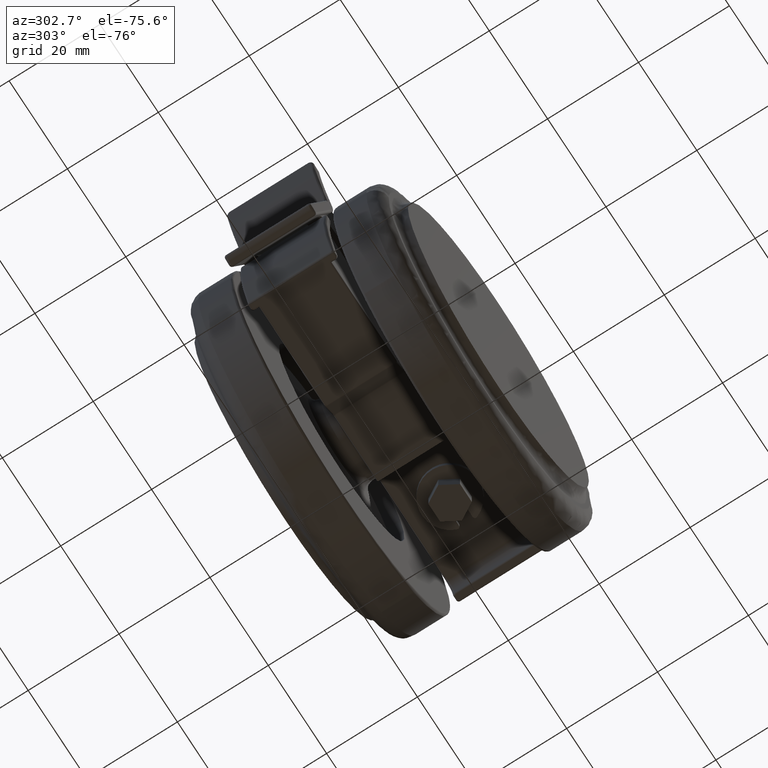
[diagram: clean part render]
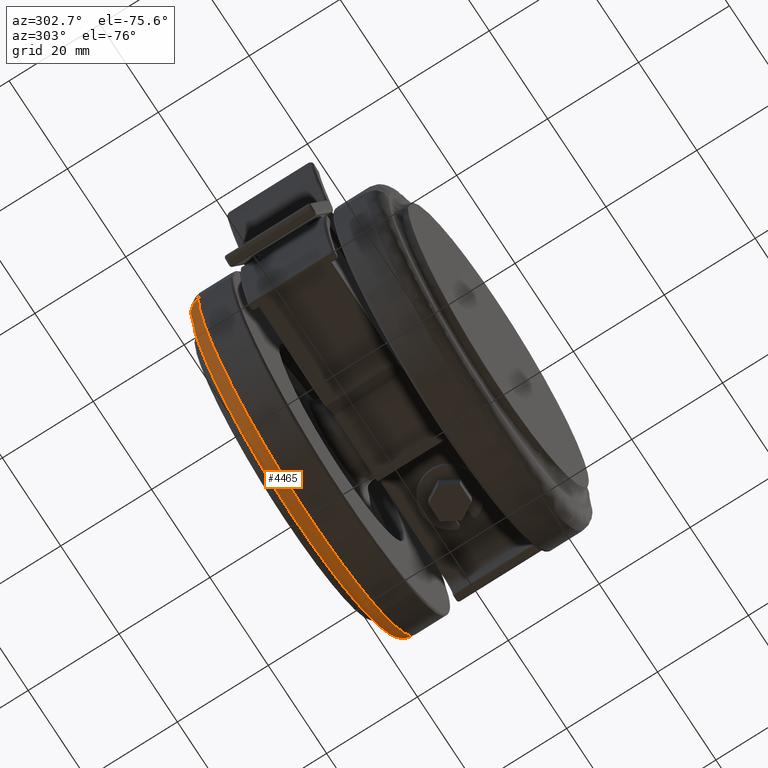
[diagram: same view with one face highlighted and labeled with its STEP entity id]
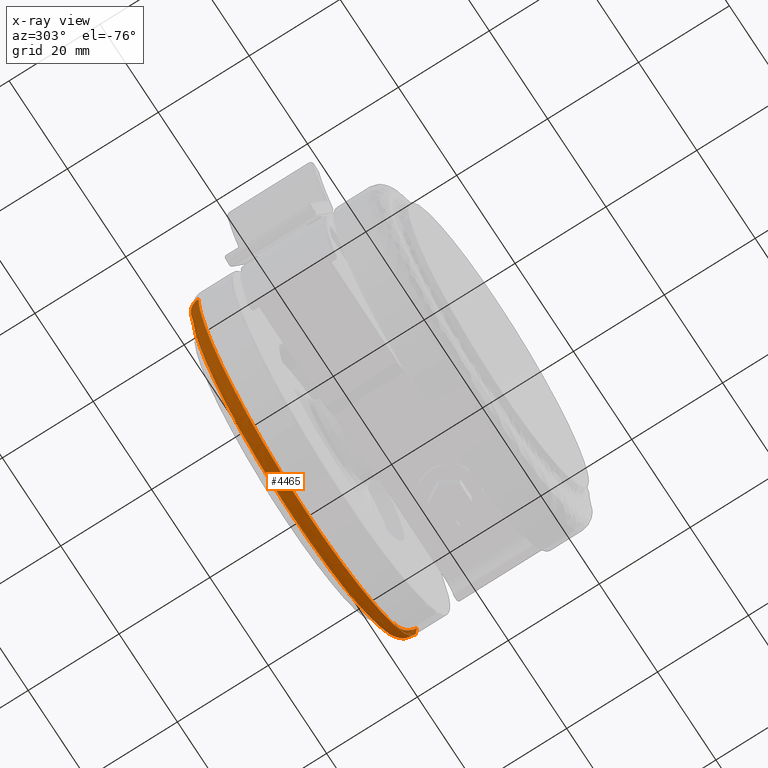
[diagram: x-ray of the same camera — body ghosted, the highlighted face saturated]
A machine part, auxiliary view. The second image highlights one B-rep face of the part: STEP entity #4465.
The next image is the same camera in x-ray: the body ghosted, the highlighted face saturated — about 1% of this face is hidden behind the body in this view.
In plain terms, the highlighted face is a freeform B-spline surface patch.
Its self-contained STEP definition (entity closure, byte-faithful):
#4238=CARTESIAN_POINT('',(5.334630980545483,18.500000000211710,-68.147901784395486));
#4239=VERTEX_POINT('',#4238);
#4245=CARTESIAN_POINT('',(17.497039157643002,18.500000000455341,-40.028773504365802));
#4246=VERTEX_POINT('',#4245);
#4247=CARTESIAN_POINT('',(5.334630980545540,18.500000000211710,-68.147901784395543));
#4248=CARTESIAN_POINT('',(17.500000000000000,18.500000000352323,-57.000396369572684));
#4249=CARTESIAN_POINT('',(17.500000000000000,18.500000000452509,-40.500000000000000));
#4250=CARTESIAN_POINT('',(17.500000000000004,18.500000000453930,-40.264377450299897));
#4251=CARTESIAN_POINT('',(17.497039157642991,18.500000000455348,-40.028773504365809));
#4259=(BOUNDED_CURVE()B_SPLINE_CURVE(2,(#4247,#4248,#4249,#4250,#4251),.UNSPECIFIED.,.F.,.U.)B_SPLINE_CURVE_WITH_KNOTS((3,2,3),(0.118415199228371,0.250000000000000,0.252215704078312),.UNSPECIFIED.)CURVE()GEOMETRIC_REPRESENTATION_ITEM()RATIONAL_B_SPLINE_CURVE((0.853959782054475,0.845838816620283,1.0,0.997404141202261,0.994854295643921))REPRESENTATION_ITEM(''));
#4260=EDGE_CURVE('',#4239,#4246,#4259,.T.);
#4320=CARTESIAN_POINT('',(-57.497039157642988,18.500000000455351,-40.971226495634191));
#4321=VERTEX_POINT('',#4320);
#4337=CARTESIAN_POINT('',(-20.0,18.500000000000000,-78.000000000000014));
#4338=VERTEX_POINT('',#4337);
#4339=CARTESIAN_POINT('',(-57.497039157642988,18.500000000455344,-40.971226495634191));
#4340=CARTESIAN_POINT('',(-57.031697371515932,18.500000000227672,-78.000000000000014));
#4341=CARTESIAN_POINT('',(-20.0,18.500000000000000,-78.000000000000014));
#4349=(BOUNDED_CURVE()B_SPLINE_CURVE(2,(#4339,#4340,#4341),.UNSPECIFIED.,.F.,.U.)B_SPLINE_CURVE_WITH_KNOTS((3,3),(0.752215704078312,1.0),.UNSPECIFIED.)CURVE()GEOMETRIC_REPRESENTATION_ITEM()RATIONAL_B_SPLINE_CURVE((0.994854295643921,0.709702639984287,1.0))REPRESENTATION_ITEM(''));
#4350=EDGE_CURVE('',#4321,#4338,#4349,.T.);
#4352=CARTESIAN_POINT('',(-20.0,18.500000000000000,-78.000000000000014));
#4353=CARTESIAN_POINT('',(-5.417048964760109,18.500000000087432,-78.0));
#4354=CARTESIAN_POINT('',(5.334630980545540,18.500000000211710,-68.147901784395543));
#4362=(BOUNDED_CURVE()B_SPLINE_CURVE(2,(#4352,#4353,#4354),.UNSPECIFIED.,.F.,.U.)B_SPLINE_CURVE_WITH_KNOTS((3,3),(0.0,0.118415199228371),.UNSPECIFIED.)CURVE()GEOMETRIC_REPRESENTATION_ITEM()RATIONAL_B_SPLINE_CURVE((1.0,0.861267964566265,0.853959782054475))REPRESENTATION_ITEM(''));
#4363=EDGE_CURVE('',#4338,#4239,#4362,.T.);
#4371=CARTESIAN_POINT('',(17.476606423104172,18.291388672660208,-38.980772872872045));
#4372=CARTESIAN_POINT('',(17.483153771816106,18.291388672660208,-39.501766902938776));
#4373=CARTESIAN_POINT('',(17.960913069746042,18.291388672660204,-77.518642585233152));
#4374=CARTESIAN_POINT('',(-19.528864757743570,18.291388672660261,-77.989777827489633));
#4375=CARTESIAN_POINT('',(-57.018642585233160,18.291388672660315,-78.460913069746042));
#4376=CARTESIAN_POINT('',(-57.496401883162896,18.291388672660318,-40.444037387467056));
#4377=CARTESIAN_POINT('',(-57.502949231874652,18.291388672660322,-39.923043357415395));
#4378=CARTESIAN_POINT('',(17.716376549328995,21.732611522053201,-38.971053068578037));
#4379=CARTESIAN_POINT('',(17.722965787069228,21.732611522053208,-39.495380346136308));
#4380=CARTESIAN_POINT('',(18.203781722675380,21.732611522053197,-77.755482722387654));
#4381=CARTESIAN_POINT('',(-19.525850499856137,21.732611522053269,-78.229632222531521));
#4382=CARTESIAN_POINT('',(-57.255482722387661,21.732611522053315,-78.703781722675387));
#4383=CARTESIAN_POINT('',(-57.736298657993601,21.732611522053322,-40.443679346439552));
#4384=CARTESIAN_POINT('',(-57.742887895733659,21.732611522053315,-39.919352068896437));
#4385=CARTESIAN_POINT('',(14.276634331634103,21.492738090595235,-39.110493380447579));
#4386=CARTESIAN_POINT('',(14.282622629376624,21.492738090595239,-39.587001889674610));
#4387=CARTESIAN_POINT('',(14.719588041047052,21.492738090595243,-74.357774127735325));
#4388=CARTESIAN_POINT('',(-19.569093043344125,21.492738090595289,-74.788681084391186));
#4389=CARTESIAN_POINT('',(-53.857774127735311,21.492738090595335,-75.219588041047047));
#4390=CARTESIAN_POINT('',(-54.294739539405562,21.492738090595346,-40.448815803000457));
#4391=CARTESIAN_POINT('',(-54.300727837147917,21.492738090595342,-39.972307293787217));
#4399=(BOUNDED_SURFACE()B_SPLINE_SURFACE(2,2,((#4371,#4378,#4385),(#4372,#4379,#4386),(#4373,#4380,#4387),(#4374,#4381,#4388),(#4375,#4382,#4389),(#4376,#4383,#4390),(#4377,#4384,#4391)),.UNSPECIFIED.,.F.,.F.,.U.)B_SPLINE_SURFACE_WITH_KNOTS((3,1,2,1,3),(3,3),(0.0,1.242400048831875,63.362402489084872,125.482404929337900,126.724804978133210),(0.0,5.468189979833281),.UNSPECIFIED.)GEOMETRIC_REPRESENTATION_ITEM()RATIONAL_B_SPLINE_SURFACE(((0.921146729405180,0.604479481452586,0.921146741237813),(0.915813262248088,0.600979527147212,0.915813274012210),(0.643806437242182,0.422481857576905,0.643806445512228),(0.910479795090997,0.597479572841838,0.910479806786608),(0.643806437242182,0.422481857576905,0.643806445512228),(0.915813262247931,0.600979527147109,0.915813274012053),(0.921146729404866,0.604479481452380,0.921146741237499)))REPRESENTATION_ITEM('')SURFACE());
#4400=ORIENTED_EDGE('',*,*,#4260,.F.);
#4401=ORIENTED_EDGE('',*,*,#4363,.F.);
#4402=ORIENTED_EDGE('',*,*,#4350,.F.);
#4403=CARTESIAN_POINT('',(-54.497276025979460,21.500000000000028,-40.933528376008518));
#4404=VERTEX_POINT('',#4403);
#4405=CARTESIAN_POINT('',(-57.497039157642988,18.500000000455351,-40.971226495634191));
#4406=CARTESIAN_POINT('',(-57.497039157187622,21.499999999051884,-40.971226495634689));
#4407=CARTESIAN_POINT('',(-54.497276025979460,21.500000000000018,-40.933528376008518));
#4415=(BOUNDED_CURVE()B_SPLINE_CURVE(2,(#4405,#4406,#4407),.UNSPECIFIED.,.F.,.U.)B_SPLINE_CURVE_WITH_KNOTS((3,3),(-1.725134643126181,-0.274865357042298),.UNSPECIFIED.)CURVE()GEOMETRIC_REPRESENTATION_ITEM()RATIONAL_B_SPLINE_CURVE((0.883342149597530,0.624617224213166,0.883342149537418))REPRESENTATION_ITEM(''));
#4416=EDGE_CURVE('',#4321,#4404,#4415,.T.);
#4417=ORIENTED_EDGE('',*,*,#4416,.T.);
#4418=CARTESIAN_POINT('',(-20.0,21.500000000000000,-75.000000000000014));
#4419=VERTEX_POINT('',#4418);
#4420=CARTESIAN_POINT('',(-54.497276025979467,21.500000000000025,-40.933528376008510));
#4421=CARTESIAN_POINT('',(-54.069161582255717,21.500000000000014,-75.000000000005983));
#4422=CARTESIAN_POINT('',(-20.0,21.500000000000000,-75.000000000000014));
#4430=(BOUNDED_CURVE()B_SPLINE_CURVE(2,(#4420,#4421,#4422),.UNSPECIFIED.,.F.,.U.)B_SPLINE_CURVE_WITH_KNOTS((3,3),(0.752215704078379,1.0),.UNSPECIFIED.)CURVE()GEOMETRIC_REPRESENTATION_ITEM()RATIONAL_B_SPLINE_CURVE((0.994854295643767,0.709702639984365,1.0))REPRESENTATION_ITEM(''));
#4431=EDGE_CURVE('',#4404,#4419,#4430,.T.);
#4432=ORIENTED_EDGE('',*,*,#4431,.T.);
#4433=CARTESIAN_POINT('',(14.497276025979470,21.499999999999972,-40.066471623991482));
#4434=VERTEX_POINT('',#4433);
#4435=CARTESIAN_POINT('',(-20.0,21.500000000000000,-75.000000000000014));
#4436=CARTESIAN_POINT('',(14.500000000468120,21.499999999999982,-74.999999999994145));
#4437=CARTESIAN_POINT('',(14.500000000942149,21.499999999999972,-40.499999999988169));
#4438=CARTESIAN_POINT('',(14.500000000945130,21.499999999999968,-40.283227254257461));
#4439=CARTESIAN_POINT('',(14.497276025979462,21.499999999999972,-40.066471623991468));
#4447=(BOUNDED_CURVE()B_SPLINE_CURVE(2,(#4435,#4436,#4437,#4438,#4439),.UNSPECIFIED.,.F.,.U.)B_SPLINE_CURVE_WITH_KNOTS((3,2,3),(0.0,0.250000000000000,0.252215704078379),.UNSPECIFIED.)CURVE()GEOMETRIC_REPRESENTATION_ITEM()RATIONAL_B_SPLINE_CURVE((1.0,0.707106781186548,1.0,0.997404141202182,0.994854295643766))REPRESENTATION_ITEM(''));
#4448=EDGE_CURVE('',#4419,#4434,#4447,.T.);
#4449=ORIENTED_EDGE('',*,*,#4448,.T.);
#4450=CARTESIAN_POINT('',(17.497039157642995,18.500000000455348,-40.028773504365795));
#4451=CARTESIAN_POINT('',(17.497039157187558,21.499999999051806,-40.028773504365283));
#4452=CARTESIAN_POINT('',(14.497276025979462,21.499999999999979,-40.066471623991475));
#4460=(BOUNDED_CURVE()B_SPLINE_CURVE(2,(#4450,#4451,#4452),.UNSPECIFIED.,.F.,.U.)B_SPLINE_CURVE_WITH_KNOTS((3,3),(-1.725134643126144,-0.274865357042294),.UNSPECIFIED.)CURVE()GEOMETRIC_REPRESENTATION_ITEM()RATIONAL_B_SPLINE_CURVE((0.883342149597517,0.624617224213172,0.883342149537419))REPRESENTATION_ITEM(''));
#4461=EDGE_CURVE('',#4246,#4434,#4460,.T.);
#4462=ORIENTED_EDGE('',*,*,#4461,.F.);
#4463=EDGE_LOOP('',(#4400,#4401,#4402,#4417,#4432,#4449,#4462));
#4464=FACE_OUTER_BOUND('',#4463,.T.);
#4465=ADVANCED_FACE('',(#4464),#4399,.T.);